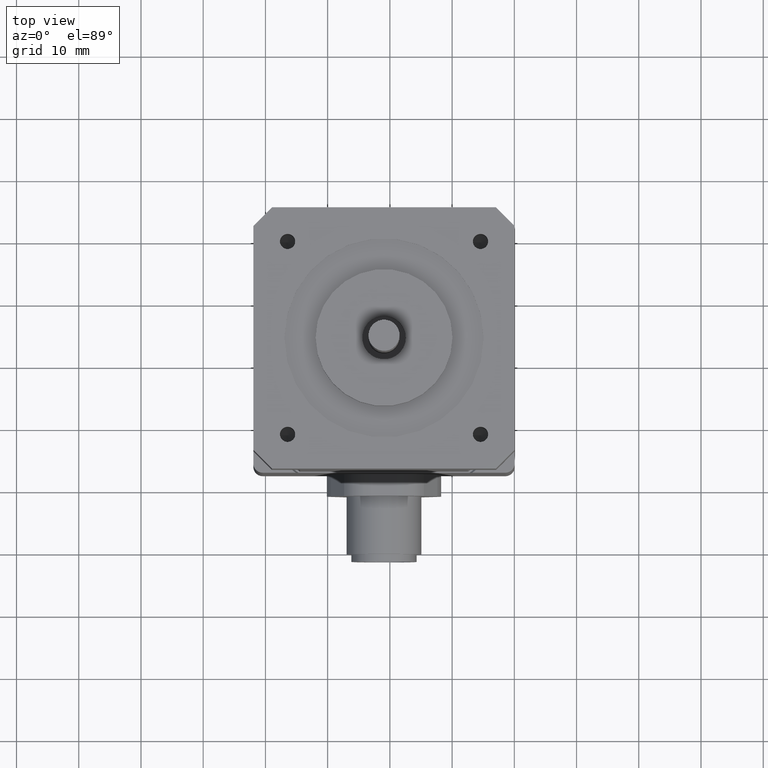
[diagram: clean part render]
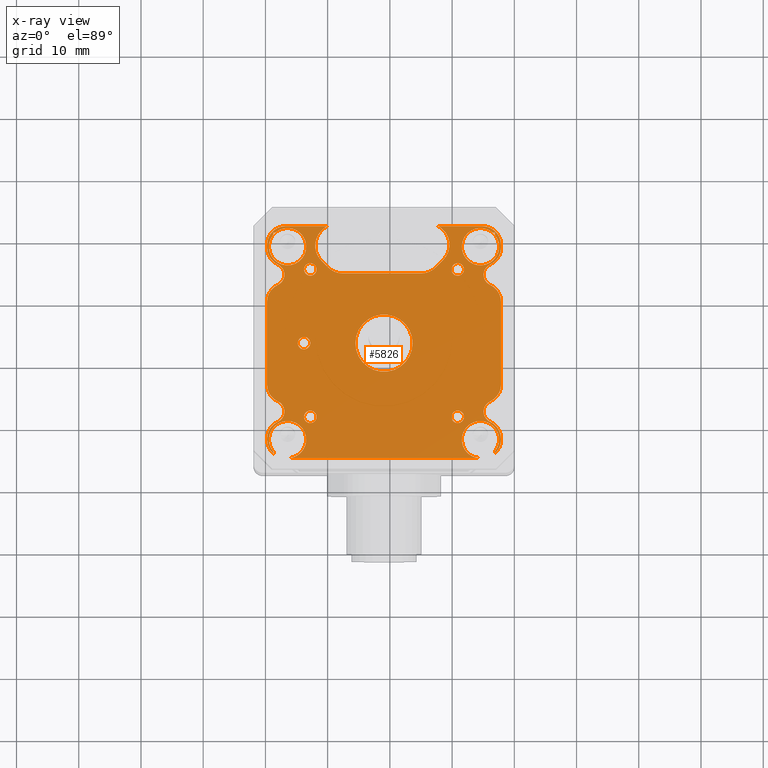
[diagram: x-ray — body ghosted, one internal face saturated and labeled with its STEP entity id]
A machine part, top view, then the same camera in x-ray: the body is ghosted and one INTERNAL B-rep face — a face not visible from any outside direction — is saturated and labeled: STEP entity #5826.
In plain terms, the highlighted planar face has unit normal (0, -0, 1).
Its self-contained STEP definition (entity closure, byte-faithful):
#2288=CARTESIAN_POINT('',(-9.134523779156057,18.800000000000008,0.0));
#2289=VERTEX_POINT('',#2288);
#2297=CARTESIAN_POINT('',(-15.800000000000001,18.800000000000011,0.0));
#2298=VERTEX_POINT('',#2297);
#2299=CARTESIAN_POINT('',(-15.800000000000002,18.800000000000011,0.0));
#2300=DIRECTION('',(1.0,0.0,0.0));
#2301=VECTOR('',#2300,6.665476220843949);
#2302=LINE('',#2299,#2301);
#2303=EDGE_CURVE('',#2298,#2289,#2302,.T.);
#2321=CARTESIAN_POINT('',(15.800000000000004,18.800000000000008,0.0));
#2322=VERTEX_POINT('',#2321);
#2329=CARTESIAN_POINT('',(8.725850795380389,18.800000000000011,0.0));
#2330=VERTEX_POINT('',#2329);
#2331=CARTESIAN_POINT('',(8.725850795380389,18.800000000000011,0.0));
#2332=DIRECTION('',(1.0,0.0,0.0));
#2333=VECTOR('',#2332,7.074149204619616);
#2334=LINE('',#2331,#2333);
#2335=EDGE_CURVE('',#2330,#2322,#2334,.T.);
#3103=CARTESIAN_POINT('',(18.800000000000001,-6.636515154145714,0.0));
#3104=VERTEX_POINT('',#3103);
#3105=CARTESIAN_POINT('',(17.050000000000001,-9.363693182804644,0.0));
#3106=VERTEX_POINT('',#3105);
#3107=CARTESIAN_POINT('',(15.799999999999999,-6.636515154145714,0.0));
#3108=DIRECTION('',(0.0,0.0,-1.0));
#3109=DIRECTION('',(0.841625411530173,-0.540061724867321,0.0));
#3110=AXIS2_PLACEMENT_3D('',#3107,#3108,#3109);
#3111=CIRCLE('',#3110,3.000000000000000);
#3112=EDGE_CURVE('',#3104,#3106,#3111,.T.);
#3135=CARTESIAN_POINT('',(17.050000000000001,-12.636306817195360,0.0));
#3136=VERTEX_POINT('',#3135);
#3143=CARTESIAN_POINT('',(17.800000000000001,-11.0,0.0));
#3144=DIRECTION('',(0.0,0.0,1.0));
#3145=DIRECTION('',(1.0,0.0,0.0));
#3146=AXIS2_PLACEMENT_3D('',#3143,#3144,#3145);
#3147=CIRCLE('',#3146,1.800000000000000);
#3148=EDGE_CURVE('',#3106,#3136,#3147,.T.);
#3160=CARTESIAN_POINT('',(18.799999999999997,-15.363484845854289,0.0));
#3161=VERTEX_POINT('',#3160);
#3162=CARTESIAN_POINT('',(15.799999999999999,-15.363484845854288,0.0));
#3163=DIRECTION('',(0.0,0.0,-1.000000000000000));
#3164=DIRECTION('',(0.841625411530173,0.540061724867322,0.0));
#3165=AXIS2_PLACEMENT_3D('',#3162,#3163,#3164);
#3166=CIRCLE('',#3165,3.000000000000000);
#3167=EDGE_CURVE('',#3136,#3161,#3166,.T.);
#3187=CARTESIAN_POINT('',(18.799999999999997,-15.500000000000007,0.0));
#3188=VERTEX_POINT('',#3187);
#3195=CARTESIAN_POINT('',(18.799999999999997,-15.363484845854289,0.0));
#3196=DIRECTION('',(0.0,-1.0,0.0));
#3197=VECTOR('',#3196,0.136515154145719);
#3198=LINE('',#3195,#3197);
#3199=EDGE_CURVE('',#3161,#3188,#3198,.T.);
#3209=CARTESIAN_POINT('',(17.799999999999997,-17.736067977499797,0.0));
#3210=VERTEX_POINT('',#3209);
#3211=CARTESIAN_POINT('',(15.800000000000001,-15.500000000000005,0.0));
#3212=DIRECTION('',(0.0,0.0,-1.000000000000000));
#3213=DIRECTION('',(0.707106781186547,-0.707106781186548,0.0));
#3214=AXIS2_PLACEMENT_3D('',#3211,#3212,#3213);
#3215=CIRCLE('',#3214,3.000000000000000);
#3216=EDGE_CURVE('',#3188,#3210,#3215,.T.);
#3244=CARTESIAN_POINT('',(17.799999999999997,-17.426136028425823,0.0));
#3245=VERTEX_POINT('',#3244);
#3252=CARTESIAN_POINT('',(17.799999999999997,-17.736067977499793,0.0));
#3253=DIRECTION('',(0.0,1.0,0.0));
#3254=VECTOR('',#3253,0.309931949073974);
#3255=LINE('',#3252,#3254);
#3256=EDGE_CURVE('',#3210,#3245,#3255,.T.);
#3358=CARTESIAN_POINT('',(-15.500000000000000,-18.500000000000000,0.0));
#3359=VERTEX_POINT('',#3358);
#3366=CARTESIAN_POINT('',(15.500000000000000,-18.500000000000000,0.0));
#3367=VERTEX_POINT('',#3366);
#3368=CARTESIAN_POINT('',(15.500000000000000,-18.500000000000007,0.0));
#3369=DIRECTION('',(-1.0,0.0,0.0));
#3370=VECTOR('',#3369,31.0);
#3371=LINE('',#3368,#3370);
#3372=EDGE_CURVE('',#3367,#3359,#3371,.T.);
#3473=CARTESIAN_POINT('',(-17.800000000000015,-17.736067977499783,0.0));
#3474=VERTEX_POINT('',#3473);
#3481=CARTESIAN_POINT('',(-17.800000000000015,-17.426136028425805,0.0));
#3482=VERTEX_POINT('',#3481);
#3483=CARTESIAN_POINT('',(-17.800000000000015,-17.426136028425805,0.0));
#3484=DIRECTION('',(0.0,-1.0,0.0));
#3485=VECTOR('',#3484,0.309931949073977);
#3486=LINE('',#3483,#3485);
#3487=EDGE_CURVE('',#3482,#3474,#3486,.T.);
#3507=CARTESIAN_POINT('',(-18.800000000000004,-15.499999999999998,0.0));
#3508=VERTEX_POINT('',#3507);
#3515=CARTESIAN_POINT('',(-15.800000000000004,-15.499999999999998,0.0));
#3516=DIRECTION('',(0.0,0.0,-1.000000000000000));
#3517=DIRECTION('',(-0.707106781186547,-0.707106781186548,0.0));
#3518=AXIS2_PLACEMENT_3D('',#3515,#3516,#3517);
#3519=CIRCLE('',#3518,3.000000000000000);
#3520=EDGE_CURVE('',#3474,#3508,#3519,.T.);
#3530=CARTESIAN_POINT('',(-18.800000000000004,-15.363484845854289,0.0));
#3531=VERTEX_POINT('',#3530);
#3538=CARTESIAN_POINT('',(-18.800000000000008,-15.499999999999996,0.0));
#3539=DIRECTION('',(0.0,1.0,0.0));
#3540=VECTOR('',#3539,0.136515154145709);
#3541=LINE('',#3538,#3540);
#3542=EDGE_CURVE('',#3508,#3531,#3541,.T.);
#3554=CARTESIAN_POINT('',(-17.050000000000004,-12.636306817195360,0.0));
#3555=VERTEX_POINT('',#3554);
#3556=CARTESIAN_POINT('',(-15.800000000000004,-15.363484845854289,0.0));
#3557=DIRECTION('',(0.0,0.0,-1.0));
#3558=DIRECTION('',(-0.841625411530173,0.540061724867322,0.0));
#3559=AXIS2_PLACEMENT_3D('',#3556,#3557,#3558);
#3560=CIRCLE('',#3559,3.000000000000000);
#3561=EDGE_CURVE('',#3531,#3555,#3560,.T.);
#3579=CARTESIAN_POINT('',(-17.050000000000004,-9.363693182804644,0.0));
#3580=VERTEX_POINT('',#3579);
#3587=CARTESIAN_POINT('',(-17.800000000000004,-11.0,0.0));
#3588=DIRECTION('',(0.0,0.0,1.0));
#3589=DIRECTION('',(1.0,0.0,0.0));
#3590=AXIS2_PLACEMENT_3D('',#3587,#3588,#3589);
#3591=CIRCLE('',#3590,1.800000000000000);
#3592=EDGE_CURVE('',#3555,#3580,#3591,.T.);
#3604=CARTESIAN_POINT('',(-18.800000000000004,-6.636515154145712,0.0));
#3605=VERTEX_POINT('',#3604);
#3606=CARTESIAN_POINT('',(-15.800000000000004,-6.636515154145712,0.0));
#3607=DIRECTION('',(0.0,0.0,-1.0));
#3608=DIRECTION('',(-0.841625411530173,-0.540061724867322,0.0));
#3609=AXIS2_PLACEMENT_3D('',#3606,#3607,#3608);
#3610=CIRCLE('',#3609,3.000000000000000);
#3611=EDGE_CURVE('',#3580,#3605,#3610,.T.);
#3631=CARTESIAN_POINT('',(-18.799999999999997,6.636515154145713,0.0));
#3632=VERTEX_POINT('',#3631);
#3639=CARTESIAN_POINT('',(-18.800000000000004,-6.636515154145712,0.0));
#3640=DIRECTION('',(0.0,1.0,0.0));
#3641=VECTOR('',#3640,13.273030308291425);
#3642=LINE('',#3639,#3641);
#3643=EDGE_CURVE('',#3605,#3632,#3642,.T.);
#3653=CARTESIAN_POINT('',(-17.050000000000004,9.363693182804644,0.0));
#3654=VERTEX_POINT('',#3653);
#3655=CARTESIAN_POINT('',(-15.800000000000001,6.636515154145714,0.0));
#3656=DIRECTION('',(0.0,0.0,-1.0));
#3657=DIRECTION('',(-0.841625411530173,0.540061724867321,0.0));
#3658=AXIS2_PLACEMENT_3D('',#3655,#3656,#3657);
#3659=CIRCLE('',#3658,3.000000000000000);
#3660=EDGE_CURVE('',#3632,#3654,#3659,.T.);
#3678=CARTESIAN_POINT('',(-17.050000000000004,12.636306817195360,0.0));
#3679=VERTEX_POINT('',#3678);
#3686=CARTESIAN_POINT('',(-17.800000000000004,11.0,0.0));
#3687=DIRECTION('',(0.0,0.0,1.0));
#3688=DIRECTION('',(1.0,0.0,0.0));
#3689=AXIS2_PLACEMENT_3D('',#3686,#3687,#3688);
#3690=CIRCLE('',#3689,1.800000000000000);
#3691=EDGE_CURVE('',#3654,#3679,#3690,.T.);
#3703=CARTESIAN_POINT('',(-18.799999999999994,15.363484845854284,0.0));
#3704=VERTEX_POINT('',#3703);
#3705=CARTESIAN_POINT('',(-15.800000000000001,15.363484845854288,0.0));
#3706=DIRECTION('',(0.0,0.0,-1.000000000000000));
#3707=DIRECTION('',(-0.841625411530173,-0.540061724867322,0.0));
#3708=AXIS2_PLACEMENT_3D('',#3705,#3706,#3707);
#3709=CIRCLE('',#3708,3.000000000000000);
#3710=EDGE_CURVE('',#3679,#3704,#3709,.T.);
#3730=CARTESIAN_POINT('',(-18.799999999999994,15.800000000000010,0.0));
#3731=VERTEX_POINT('',#3730);
#3738=CARTESIAN_POINT('',(-18.799999999999997,15.363484845854286,0.0));
#3739=DIRECTION('',(0.0,1.0,0.0));
#3740=VECTOR('',#3739,0.436515154145724);
#3741=LINE('',#3738,#3740);
#3742=EDGE_CURVE('',#3704,#3731,#3741,.T.);
#3752=CARTESIAN_POINT('',(-15.800000000000001,15.800000000000010,0.0));
#3753=DIRECTION('',(0.0,0.0,-1.000000000000000));
#3754=DIRECTION('',(-0.707106781186547,0.707106781186547,0.0));
#3755=AXIS2_PLACEMENT_3D('',#3752,#3753,#3754);
#3756=CIRCLE('',#3755,3.0);
#3757=EDGE_CURVE('',#3731,#2298,#3756,.T.);
#3770=CARTESIAN_POINT('',(18.800000000000008,15.800000000000004,0.0));
#3771=VERTEX_POINT('',#3770);
#3772=CARTESIAN_POINT('',(15.800000000000004,15.800000000000004,0.0));
#3773=DIRECTION('',(0.0,0.0,-1.000000000000000));
#3774=DIRECTION('',(0.707106781186547,0.707106781186547,0.0));
#3775=AXIS2_PLACEMENT_3D('',#3772,#3773,#3774);
#3776=CIRCLE('',#3775,3.0);
#3777=EDGE_CURVE('',#2322,#3771,#3776,.T.);
#3795=CARTESIAN_POINT('',(18.800000000000008,15.363484845854289,0.0));
#3796=VERTEX_POINT('',#3795);
#3803=CARTESIAN_POINT('',(18.800000000000004,15.800000000000004,0.0));
#3804=DIRECTION('',(0.0,-1.0,0.0));
#3805=VECTOR('',#3804,0.436515154145715);
#3806=LINE('',#3803,#3805);
#3807=EDGE_CURVE('',#3771,#3796,#3806,.T.);
#3819=CARTESIAN_POINT('',(17.050000000000004,12.636306817195360,0.0));
#3820=VERTEX_POINT('',#3819);
#3821=CARTESIAN_POINT('',(15.800000000000004,15.363484845854289,0.0));
#3822=DIRECTION('',(0.0,0.0,-1.0));
#3823=DIRECTION('',(0.841625411530173,-0.540061724867322,0.0));
#3824=AXIS2_PLACEMENT_3D('',#3821,#3822,#3823);
#3825=CIRCLE('',#3824,3.000000000000000);
#3826=EDGE_CURVE('',#3796,#3820,#3825,.T.);
#3844=CARTESIAN_POINT('',(17.050000000000004,9.363693182804642,0.0));
#3845=VERTEX_POINT('',#3844);
#3852=CARTESIAN_POINT('',(17.800000000000001,11.0,0.0));
#3853=DIRECTION('',(0.0,0.0,1.0));
#3854=DIRECTION('',(1.0,0.0,0.0));
#3855=AXIS2_PLACEMENT_3D('',#3852,#3853,#3854);
#3856=CIRCLE('',#3855,1.800000000000000);
#3857=EDGE_CURVE('',#3820,#3845,#3856,.T.);
#3869=CARTESIAN_POINT('',(18.800000000000004,6.636515154145712,0.0));
#3870=VERTEX_POINT('',#3869);
#3871=CARTESIAN_POINT('',(15.800000000000004,6.636515154145712,0.0));
#3872=DIRECTION('',(0.0,0.0,-1.0));
#3873=DIRECTION('',(0.841625411530173,0.540061724867322,0.0));
#3874=AXIS2_PLACEMENT_3D('',#3871,#3872,#3873);
#3875=CIRCLE('',#3874,3.000000000000000);
#3876=EDGE_CURVE('',#3845,#3870,#3875,.T.);
#3897=CARTESIAN_POINT('',(18.800000000000004,6.636515154145712,0.0));
#3898=DIRECTION('',(0.0,-1.0,0.0));
#3899=VECTOR('',#3898,13.273030308291426);
#3900=LINE('',#3897,#3899);
#3901=EDGE_CURVE('',#3870,#3104,#3900,.T.);
#4218=CARTESIAN_POINT('',(-13.857038584874669,2.220446E-015,0.0));
#4219=VERTEX_POINT('',#4218);
#4220=CARTESIAN_POINT('',(-12.850538584874670,2.220446E-015,0.0));
#4221=DIRECTION('',(0.0,0.0,1.0));
#4222=DIRECTION('',(-1.0,0.0,0.0));
#4223=AXIS2_PLACEMENT_3D('',#4220,#4221,#4222);
#4224=CIRCLE('',#4223,1.006500000000000);
#4225=EDGE_CURVE('',#4219,#4219,#4224,.T.);
#5057=CARTESIAN_POINT('',(-9.938686835190316,18.204163056034272,0.0));
#5058=VERTEX_POINT('',#5057);
#5066=CARTESIAN_POINT('',(-7.534523779156054,15.800000000000010,0.0));
#5067=DIRECTION('',(0.0,0.0,-1.0));
#5068=DIRECTION('',(-0.382683432365090,0.923879532511287,0.0));
#5069=AXIS2_PLACEMENT_3D('',#5066,#5067,#5068);
#5070=CIRCLE('',#5069,3.400000000000000);
#5071=EDGE_CURVE('',#5058,#2289,#5070,.T.);
#5089=CARTESIAN_POINT('',(-10.065858860802813,18.076991030421773,0.0));
#5090=VERTEX_POINT('',#5089);
#5098=CARTESIAN_POINT('',(-10.065858860802813,18.076991030421773,0.0));
#5099=DIRECTION('',(0.707106781186543,0.707106781186552,0.0));
#5100=VECTOR('',#5099,0.179848403375653);
#5101=LINE('',#5098,#5100);
#5102=EDGE_CURVE('',#5090,#5058,#5101,.T.);
#5119=CARTESIAN_POINT('',(-10.065858860802814,13.268664918353249,0.0));
#5120=VERTEX_POINT('',#5119);
#5128=CARTESIAN_POINT('',(-7.661695804768551,15.672827974387511,0.0));
#5129=DIRECTION('',(0.0,0.0,-1.0));
#5130=DIRECTION('',(-1.0,0.0,0.0));
#5131=AXIS2_PLACEMENT_3D('',#5128,#5129,#5130);
#5132=CIRCLE('',#5131,3.400000000000001);
#5133=EDGE_CURVE('',#5120,#5090,#5132,.T.);
#5145=CARTESIAN_POINT('',(-8.993030886415303,12.195836943965739,0.0));
#5146=VERTEX_POINT('',#5145);
#5154=CARTESIAN_POINT('',(-8.993030886415303,12.195836943965739,0.0));
#5155=DIRECTION('',(-0.707106781186548,0.707106781186548,0.0));
#5156=VECTOR('',#5155,1.517207871472071);
#5157=LINE('',#5154,#5156);
#5158=EDGE_CURVE('',#5146,#5120,#5157,.T.);
#5170=CARTESIAN_POINT('',(-6.588867830381041,11.200000000000001,0.0));
#5171=VERTEX_POINT('',#5170);
#5179=CARTESIAN_POINT('',(-6.588867830381040,14.600000000000001,0.0));
#5180=DIRECTION('',(0.0,0.0,-1.0));
#5181=DIRECTION('',(-0.382683432365090,-0.923879532511287,0.0));
#5182=AXIS2_PLACEMENT_3D('',#5179,#5180,#5181);
#5183=CIRCLE('',#5182,3.400000000000001);
#5184=EDGE_CURVE('',#5171,#5146,#5183,.T.);
#5196=CARTESIAN_POINT('',(5.925850795380388,11.199999999999999,0.0));
#5197=VERTEX_POINT('',#5196);
#5205=CARTESIAN_POINT('',(5.925850795380387,11.199999999999998,0.0));
#5206=DIRECTION('',(-1.0,0.0,0.0));
#5207=VECTOR('',#5206,12.514718625761429);
#5208=LINE('',#5205,#5207);
#5209=EDGE_CURVE('',#5197,#5171,#5208,.T.);
#5221=CARTESIAN_POINT('',(8.330013851414648,12.195836943965734,0.0));
#5222=VERTEX_POINT('',#5221);
#5230=CARTESIAN_POINT('',(5.925850795380389,14.599999999999998,0.0));
#5231=DIRECTION('',(0.0,0.0,-1.0));
#5232=DIRECTION('',(0.382683432365089,-0.923879532511287,0.0));
#5233=AXIS2_PLACEMENT_3D('',#5230,#5231,#5232);
#5234=CIRCLE('',#5233,3.400000000000000);
#5235=EDGE_CURVE('',#5222,#5197,#5234,.T.);
#5247=CARTESIAN_POINT('',(9.530013851414660,13.395836943965742,0.0));
#5248=VERTEX_POINT('',#5247);
#5256=CARTESIAN_POINT('',(9.530013851414662,13.395836943965744,0.0));
#5257=DIRECTION('',(-0.707106781186548,-0.707106781186547,0.0));
#5258=VECTOR('',#5257,1.697056274847729);
#5259=LINE('',#5256,#5258);
#5260=EDGE_CURVE('',#5248,#5222,#5259,.T.);
#5273=CARTESIAN_POINT('',(7.125850795380400,15.800000000000004,0.0));
#5274=DIRECTION('',(0.0,0.0,-1.0));
#5275=DIRECTION('',(0.923879532511287,0.382683432365089,0.0));
#5276=AXIS2_PLACEMENT_3D('',#5273,#5274,#5275);
#5277=CIRCLE('',#5276,3.399999999999998);
#5278=EDGE_CURVE('',#2330,#5248,#5277,.T.);
#5657=CARTESIAN_POINT('',(1.110223E-015,2.018587E-015,0.0));
#5658=DIRECTION('',(0.0,0.0,1.0));
#5659=DIRECTION('',(1.0,0.0,0.0));
#5660=AXIS2_PLACEMENT_3D('',#5657,#5658,#5659);
#5661=PLANE('',#5660);
#5662=ORIENTED_EDGE('',*,*,#5278,.F.);
#5663=ORIENTED_EDGE('',*,*,#2335,.T.);
#5664=ORIENTED_EDGE('',*,*,#3777,.T.);
#5665=ORIENTED_EDGE('',*,*,#3807,.T.);
#5666=ORIENTED_EDGE('',*,*,#3826,.T.);
#5667=ORIENTED_EDGE('',*,*,#3857,.T.);
#5668=ORIENTED_EDGE('',*,*,#3876,.T.);
#5669=ORIENTED_EDGE('',*,*,#3901,.T.);
#5670=ORIENTED_EDGE('',*,*,#3112,.T.);
#5671=ORIENTED_EDGE('',*,*,#3148,.T.);
#5672=ORIENTED_EDGE('',*,*,#3167,.T.);
#5673=ORIENTED_EDGE('',*,*,#3199,.T.);
#5674=ORIENTED_EDGE('',*,*,#3216,.T.);
#5675=ORIENTED_EDGE('',*,*,#3256,.T.);
#5676=CARTESIAN_POINT('',(15.500000000000000,-15.499999999999998,0.0));
#5677=DIRECTION('',(0.0,0.0,1.0));
#5678=DIRECTION('',(-1.0,0.0,0.0));
#5679=AXIS2_PLACEMENT_3D('',#5676,#5677,#5678);
#5680=CIRCLE('',#5679,3.000000000000000);
#5681=EDGE_CURVE('',#3245,#3367,#5680,.T.);
#5682=ORIENTED_EDGE('',*,*,#5681,.T.);
#5683=ORIENTED_EDGE('',*,*,#3372,.T.);
#5684=CARTESIAN_POINT('',(-15.500000000000000,-15.499999999999998,0.0));
#5685=DIRECTION('',(0.0,0.0,1.0));
#5686=DIRECTION('',(-1.0,0.0,0.0));
#5687=AXIS2_PLACEMENT_3D('',#5684,#5685,#5686);
#5688=CIRCLE('',#5687,3.000000000000000);
#5689=EDGE_CURVE('',#3359,#3482,#5688,.T.);
#5690=ORIENTED_EDGE('',*,*,#5689,.T.);
#5691=ORIENTED_EDGE('',*,*,#3487,.T.);
#5692=ORIENTED_EDGE('',*,*,#3520,.T.);
#5693=ORIENTED_EDGE('',*,*,#3542,.T.);
#5694=ORIENTED_EDGE('',*,*,#3561,.T.);
#5695=ORIENTED_EDGE('',*,*,#3592,.T.);
#5696=ORIENTED_EDGE('',*,*,#3611,.T.);
#5697=ORIENTED_EDGE('',*,*,#3643,.T.);
#5698=ORIENTED_EDGE('',*,*,#3660,.T.);
#5699=ORIENTED_EDGE('',*,*,#3691,.T.);
#5700=ORIENTED_EDGE('',*,*,#3710,.T.);
#5701=ORIENTED_EDGE('',*,*,#3742,.T.);
#5702=ORIENTED_EDGE('',*,*,#3757,.T.);
#5703=ORIENTED_EDGE('',*,*,#2303,.T.);
#5704=ORIENTED_EDGE('',*,*,#5071,.F.);
#5705=ORIENTED_EDGE('',*,*,#5102,.F.);
#5706=ORIENTED_EDGE('',*,*,#5133,.F.);
#5707=ORIENTED_EDGE('',*,*,#5158,.F.);
#5708=ORIENTED_EDGE('',*,*,#5184,.F.);
#5709=ORIENTED_EDGE('',*,*,#5209,.F.);
#5710=ORIENTED_EDGE('',*,*,#5235,.F.);
#5711=ORIENTED_EDGE('',*,*,#5260,.F.);
#5712=EDGE_LOOP('',(#5662,#5663,#5664,#5665,#5666,#5667,#5668,#5669,#5670,#5671,#5672,#5673,#5674,#5675,#5682,#5683,#5690,#5691,#5692,#5693,#5694,#5695,#5696,#5697,#5698,#5699,#5700,#5701,#5702,#5703,#5704,#5705,#5706,#5707,#5708,#5709,#5710,#5711));
#5713=FACE_OUTER_BOUND('',#5712,.T.);
#5714=CARTESIAN_POINT('',(-4.600000000000000,-5.633375E-016,0.0));
#5715=VERTEX_POINT('',#5714);
#5716=CARTESIAN_POINT('',(0.0,0.0,0.0));
#5717=DIRECTION('',(0.0,0.0,-1.0));
#5718=DIRECTION('',(-1.0,0.0,0.0));
#5719=AXIS2_PLACEMENT_3D('',#5716,#5717,#5718);
#5720=CIRCLE('',#5719,4.600000000000000);
#5721=EDGE_CURVE('',#5715,#5715,#5720,.T.);
#5722=ORIENTED_EDGE('',*,*,#5721,.F.);
#5723=EDGE_LOOP('',(#5722));
#5724=FACE_BOUND('',#5723,.T.);
#5725=ORIENTED_EDGE('',*,*,#4225,.T.);
#5726=EDGE_LOOP('',(#5725));
#5727=FACE_BOUND('',#5726,.T.);
#5728=CARTESIAN_POINT('',(-17.799999999999990,17.426136028425837,0.0));
#5729=VERTEX_POINT('',#5728);
#5730=CARTESIAN_POINT('',(-17.426136028425809,17.800000000000015,0.0));
#5731=VERTEX_POINT('',#5730);
#5732=CARTESIAN_POINT('',(-15.500000000000000,15.500000000000004,0.0));
#5733=DIRECTION('',(0.0,0.0,1.0));
#5734=DIRECTION('',(-1.0,0.0,0.0));
#5735=AXIS2_PLACEMENT_3D('',#5732,#5733,#5734);
#5736=CIRCLE('',#5735,3.000000000000000);
#5737=EDGE_CURVE('',#5729,#5731,#5736,.T.);
#5738=ORIENTED_EDGE('',*,*,#5737,.T.);
#5739=CARTESIAN_POINT('',(-17.799999999999990,17.800000000000015,0.0));
#5740=VERTEX_POINT('',#5739);
#5741=CARTESIAN_POINT('',(-17.426136028425809,17.800000000000018,0.0));
#5742=DIRECTION('',(-1.0,0.0,0.0));
#5743=VECTOR('',#5742,0.373863971574181);
#5744=LINE('',#5741,#5743);
#5745=EDGE_CURVE('',#5731,#5740,#5744,.T.);
#5746=ORIENTED_EDGE('',*,*,#5745,.T.);
#5747=CARTESIAN_POINT('',(-17.799999999999990,17.800000000000018,0.0));
#5748=DIRECTION('',(0.0,-1.0,0.0));
#5749=VECTOR('',#5748,0.373863971574181);
#5750=LINE('',#5747,#5749);
#5751=EDGE_CURVE('',#5740,#5729,#5750,.T.);
#5752=ORIENTED_EDGE('',*,*,#5751,.T.);
#5753=EDGE_LOOP('',(#5738,#5746,#5752));
#5754=FACE_BOUND('',#5753,.T.);
#5755=CARTESIAN_POINT('',(-11.844038584874674,-12.850538584874670,0.0));
#5756=VERTEX_POINT('',#5755);
#5757=CARTESIAN_POINT('',(-11.844038584874674,-11.844038584874671,0.0));
#5758=DIRECTION('',(0.0,0.0,1.0));
#5759=DIRECTION('',(0.0,-1.0,0.0));
#5760=AXIS2_PLACEMENT_3D('',#5757,#5758,#5759);
#5761=CIRCLE('',#5760,1.006500000000000);
#5762=EDGE_CURVE('',#5756,#5756,#5761,.T.);
#5763=ORIENTED_EDGE('',*,*,#5762,.T.);
#5764=EDGE_LOOP('',(#5763));
#5765=FACE_BOUND('',#5764,.T.);
#5766=CARTESIAN_POINT('',(12.850538584874666,-11.844038584874676,0.0));
#5767=VERTEX_POINT('',#5766);
#5768=CARTESIAN_POINT('',(11.844038584874667,-11.844038584874676,0.0));
#5769=DIRECTION('',(0.0,0.0,1.0));
#5770=DIRECTION('',(1.0,0.0,0.0));
#5771=AXIS2_PLACEMENT_3D('',#5768,#5769,#5770);
#5772=CIRCLE('',#5771,1.006500000000000);
#5773=EDGE_CURVE('',#5767,#5767,#5772,.T.);
#5774=ORIENTED_EDGE('',*,*,#5773,.T.);
#5775=EDGE_LOOP('',(#5774));
#5776=FACE_BOUND('',#5775,.T.);
#5777=CARTESIAN_POINT('',(11.844038584874676,12.850538584874666,0.0));
#5778=VERTEX_POINT('',#5777);
#5779=CARTESIAN_POINT('',(11.844038584874676,11.844038584874667,0.0));
#5780=DIRECTION('',(0.0,0.0,1.0));
#5781=DIRECTION('',(0.0,1.0,0.0));
#5782=AXIS2_PLACEMENT_3D('',#5779,#5780,#5781);
#5783=CIRCLE('',#5782,1.006500000000000);
#5784=EDGE_CURVE('',#5778,#5778,#5783,.T.);
#5785=ORIENTED_EDGE('',*,*,#5784,.T.);
#5786=EDGE_LOOP('',(#5785));
#5787=FACE_BOUND('',#5786,.T.);
#5788=CARTESIAN_POINT('',(-12.850538584874666,11.844038584874676,0.0));
#5789=VERTEX_POINT('',#5788);
#5790=CARTESIAN_POINT('',(-11.844038584874667,11.844038584874676,0.0));
#5791=DIRECTION('',(0.0,0.0,1.0));
#5792=DIRECTION('',(-1.0,0.0,0.0));
#5793=AXIS2_PLACEMENT_3D('',#5790,#5791,#5792);
#5794=CIRCLE('',#5793,1.006500000000000);
#5795=EDGE_CURVE('',#5789,#5789,#5794,.T.);
#5796=ORIENTED_EDGE('',*,*,#5795,.T.);
#5797=EDGE_LOOP('',(#5796));
#5798=FACE_BOUND('',#5797,.T.);
#5799=CARTESIAN_POINT('',(17.426136028425820,17.800000000000008,0.0));
#5800=VERTEX_POINT('',#5799);
#5801=CARTESIAN_POINT('',(17.800000000000011,17.426136028425812,0.0));
#5802=VERTEX_POINT('',#5801);
#5803=CARTESIAN_POINT('',(15.500000000000000,15.500000000000004,0.0));
#5804=DIRECTION('',(0.0,0.0,1.0));
#5805=DIRECTION('',(-1.0,0.0,0.0));
#5806=AXIS2_PLACEMENT_3D('',#5803,#5804,#5805);
#5807=CIRCLE('',#5806,3.000000000000000);
#5808=EDGE_CURVE('',#5800,#5802,#5807,.T.);
#5809=ORIENTED_EDGE('',*,*,#5808,.T.);
#5810=CARTESIAN_POINT('',(17.800000000000011,17.800000000000004,0.0));
#5811=VERTEX_POINT('',#5810);
#5812=CARTESIAN_POINT('',(17.800000000000011,17.426136028425816,0.0));
#5813=DIRECTION('',(0.0,1.0,0.0));
#5814=VECTOR('',#5813,0.373863971574188);
#5815=LINE('',#5812,#5814);
#5816=EDGE_CURVE('',#5802,#5811,#5815,.T.);
#5817=ORIENTED_EDGE('',*,*,#5816,.T.);
#5818=CARTESIAN_POINT('',(17.800000000000011,17.800000000000008,0.0));
#5819=DIRECTION('',(-1.0,0.0,0.0));
#5820=VECTOR('',#5819,0.373863971574188);
#5821=LINE('',#5818,#5820);
#5822=EDGE_CURVE('',#5811,#5800,#5821,.T.);
#5823=ORIENTED_EDGE('',*,*,#5822,.T.);
#5824=EDGE_LOOP('',(#5809,#5817,#5823));
#5825=FACE_BOUND('',#5824,.T.);
#5826=ADVANCED_FACE('',(#5713,#5724,#5727,#5754,#5765,#5776,#5787,#5798,#5825),#5661,.F.);